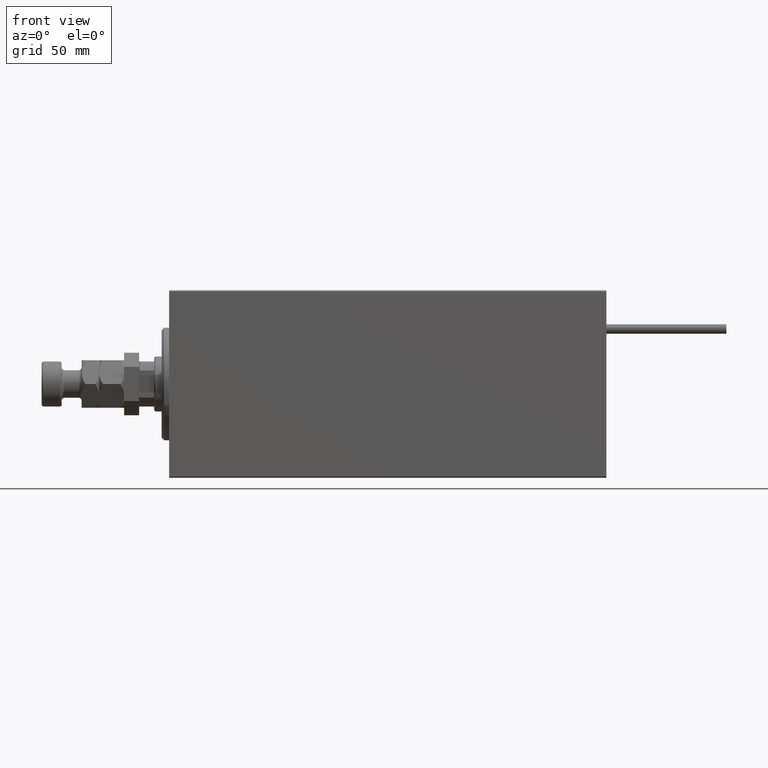
[diagram: clean part render]
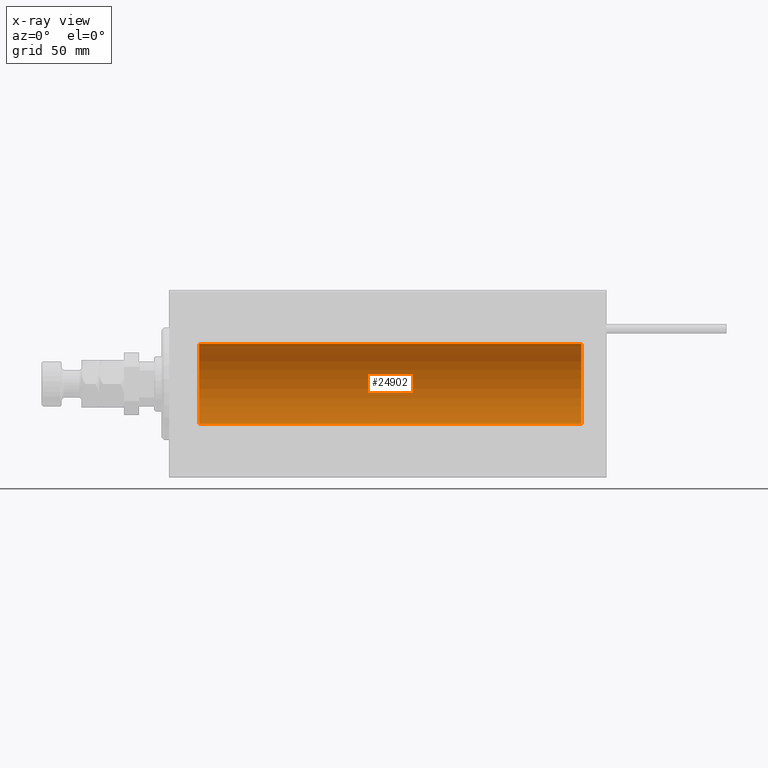
[diagram: x-ray — body ghosted, one internal face saturated and labeled with its STEP entity id]
A machine part, front view, then the same camera in x-ray: the body is ghosted and one INTERNAL B-rep face — a face not visible from any outside direction — is saturated and labeled: STEP entity #24902.
In plain terms, the highlighted cylindrical surface (partial cylindrical patch) has radius 16 mm, axis along (-1, -0, -0).
Its self-contained STEP definition (entity closure, byte-faithful):
#2829 = AXIS2_PLACEMENT_3D ( 'NONE', #6344, #7821, #34251 ) ;
#4022 = AXIS2_PLACEMENT_3D ( 'NONE', #47897, #44233, #39558 ) ;
#6344 = CARTESIAN_POINT ( 'NONE',  ( 12.00000000000001066, 0.000000000000000000, 0.000000000000000000 ) ) ;
#6480 = ORIENTED_EDGE ( 'NONE', *, *, #17776, .T. ) ;
#7821 = DIRECTION ( 'NONE',  ( -1.000000000000000000, 0.000000000000000000, 0.000000000000000000 ) ) ;
#8801 = EDGE_CURVE ( 'NONE', #27611, #21288, #29482, .T. ) ;
#14591 = EDGE_CURVE ( 'NONE', #47210, #30433, #38177, .T. ) ;
#15167 = CARTESIAN_POINT ( 'NONE',  ( 165.0000000000000000, 1.959434878635765131E-15, -16.00000000000000000 ) ) ;
#16564 = CARTESIAN_POINT ( 'NONE',  ( 12.00000000000001066, 1.959434878635765131E-15, -16.00000000000000000 ) ) ;
#17776 = EDGE_CURVE ( 'NONE', #47210, #27611, #37177, .T. ) ;
#21288 = VERTEX_POINT ( 'NONE', #16564 ) ;
#22805 = VECTOR ( 'NONE', #26441, 1000.000000000000000 ) ;
#23412 = AXIS2_PLACEMENT_3D ( 'NONE', #31630, #47549, #40748 ) ;
#23539 = FACE_OUTER_BOUND ( 'NONE', #47593, .T. ) ;
#24902 = ADVANCED_FACE ( 'NONE', ( #23539 ), #50935, .F. ) ;
#25678 = LINE ( 'NONE', #41863, #22805 ) ;
#26441 = DIRECTION ( 'NONE',  ( -1.000000000000000000, -0.000000000000000000, -0.000000000000000000 ) ) ;
#27611 = VERTEX_POINT ( 'NONE', #46090 ) ;
#29482 = CIRCLE ( 'NONE', #2829, 16.00000000000000000 ) ;
#29611 = CARTESIAN_POINT ( 'NONE',  ( 165.0000000000000000, 0.000000000000000000, 16.00000000000000000 ) ) ;
#29645 = CARTESIAN_POINT ( 'NONE',  ( 165.0000000000000000, 0.000000000000000000, 16.00000000000000000 ) ) ;
#30433 = VERTEX_POINT ( 'NONE', #15167 ) ;
#31630 = CARTESIAN_POINT ( 'NONE',  ( 165.0000000000000000, 0.000000000000000000, 0.000000000000000000 ) ) ;
#33728 = ORIENTED_EDGE ( 'NONE', *, *, #49158, .F. ) ;
#34251 = DIRECTION ( 'NONE',  ( 0.000000000000000000, 0.000000000000000000, 1.000000000000000000 ) ) ;
#37177 = LINE ( 'NONE', #29611, #39112 ) ;
#37436 = DIRECTION ( 'NONE',  ( -1.000000000000000000, -0.000000000000000000, -0.000000000000000000 ) ) ;
#38177 = CIRCLE ( 'NONE', #4022, 16.00000000000000000 ) ;
#39112 = VECTOR ( 'NONE', #37436, 1000.000000000000000 ) ;
#39558 = DIRECTION ( 'NONE',  ( 0.000000000000000000, 0.000000000000000000, 1.000000000000000000 ) ) ;
#40748 = DIRECTION ( 'NONE',  ( 0.000000000000000000, 0.000000000000000000, 1.000000000000000000 ) ) ;
#41305 = ORIENTED_EDGE ( 'NONE', *, *, #14591, .F. ) ;
#41575 = ORIENTED_EDGE ( 'NONE', *, *, #8801, .T. ) ;
#41863 = CARTESIAN_POINT ( 'NONE',  ( 165.0000000000000000, 1.959434878635765131E-15, -16.00000000000000000 ) ) ;
#44233 = DIRECTION ( 'NONE',  ( -1.000000000000000000, 0.000000000000000000, 0.000000000000000000 ) ) ;
#46090 = CARTESIAN_POINT ( 'NONE',  ( 12.00000000000001066, 0.000000000000000000, 16.00000000000000000 ) ) ;
#47210 = VERTEX_POINT ( 'NONE', #29645 ) ;
#47549 = DIRECTION ( 'NONE',  ( -1.000000000000000000, -0.000000000000000000, -0.000000000000000000 ) ) ;
#47593 = EDGE_LOOP ( 'NONE', ( #33728, #41305, #6480, #41575 ) ) ;
#47897 = CARTESIAN_POINT ( 'NONE',  ( 165.0000000000000000, 0.000000000000000000, 0.000000000000000000 ) ) ;
#49158 = EDGE_CURVE ( 'NONE', #30433, #21288, #25678, .T. ) ;
#50935 = CYLINDRICAL_SURFACE ( 'NONE', #23412, 16.00000000000000000 ) ;